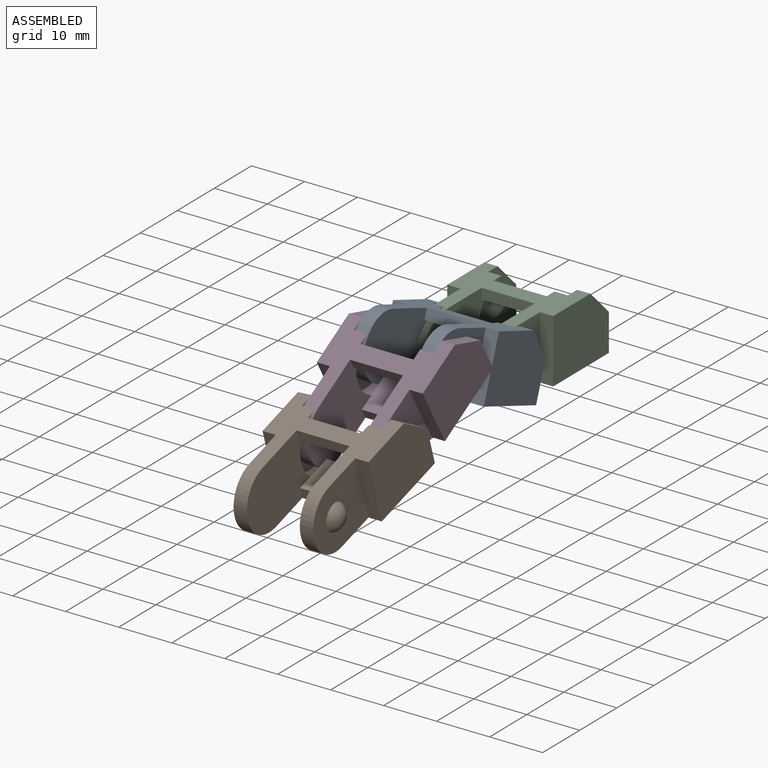
[diagram: assembled view]
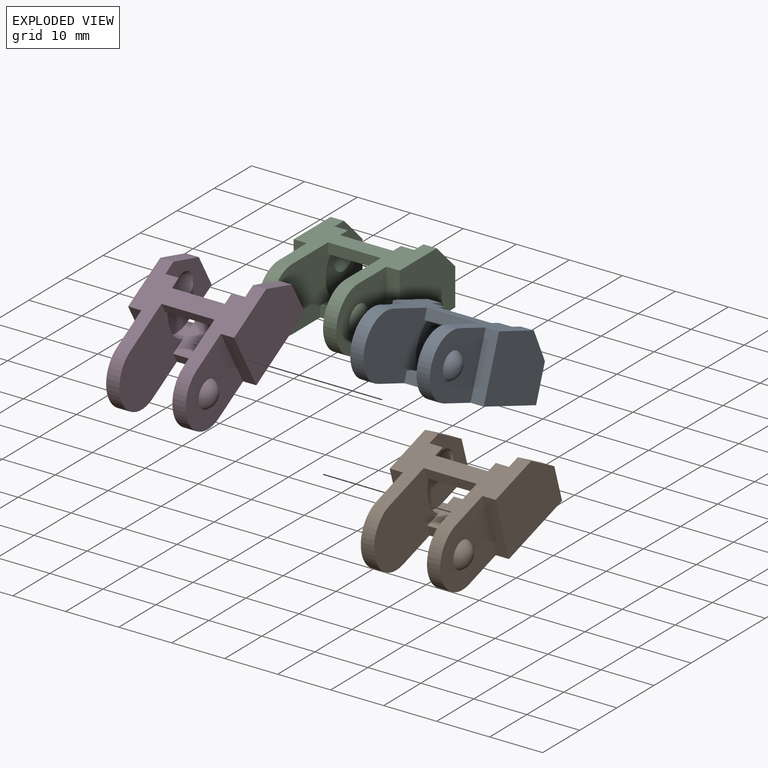
[diagram: exploded view]
GUIDED TOUR — MATED ASSEMBLY (Onshape document 897d0298ff8cda94a772b24f, AutoMate assembly 897d0298ff8cda94a772b24f_019c28cedd6a41c96746a99c_390baf3e306a32f35271c9ea_default)

This assembly has 4 components, labeled P0..P3 below (a component is one placed occurrence of a part; the same part can appear more than once), held together by 3 mates. A mate is a constraint between two components; its type names the relative motion it leaves free:
  REVOLUTE — leaves rotation about the listed axis free (a hinge).
Axis/direction vectors are unit vectors and 'through' points are millimeter coordinates, both in the assembly's world frame.

MATES
  1. REVOLUTE "Revolute 1": P3 <-> P1, axis (1.000, 0.000, 0.000) through (3.24, -34.05, 17.17) mm
  2. REVOLUTE "Revolute 2": P3 <-> P0, axis (-1.000, 0.000, 0.000) through (3.24, -19.09, 25.81) mm
  3. REVOLUTE "Revolute 3": P0 <-> P2, axis (-1.000, 0.000, 0.000) through (3.24, -2.87, 19.90) mm

ASSEMBLY ORDER
  1. P0 — the base component [order heuristic]
  2. P2 [order heuristic]
  3. P3 [order heuristic]
  4. P1 [order heuristic]
Order-tag legend:
  [order heuristic] — this assembly is geometrically interlocked (no collision-free removal order exists), so components are listed in mate-graph order; insertion feasibility is not verified.

Of the 4 components, 4 carry the full construction recipe — the FeatureScript program that regenerates the part's solid from scratch; the rest are supplied as boundary geometry only.
Each toured component is shown spotlighted twice — in the assembled view, then in the exploded view, where a leader line traces a displaced component back to its assembled socket (saturated green if recipe-attached, orange if geometry-only; every other component desaturated gray) — followed by its recipe or geometry summary and the mates that hold it.
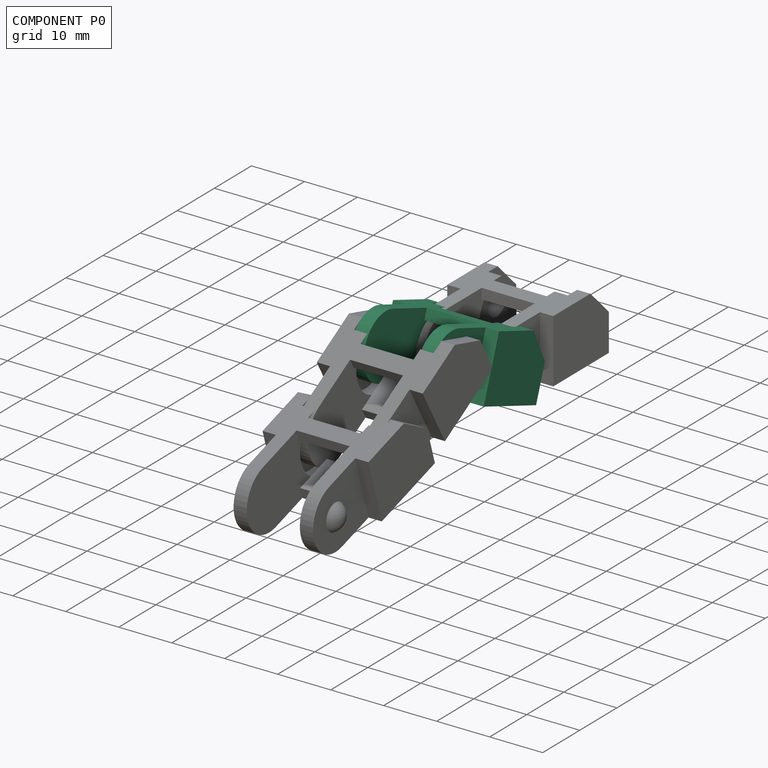
[diagram: component P0 — assembled]
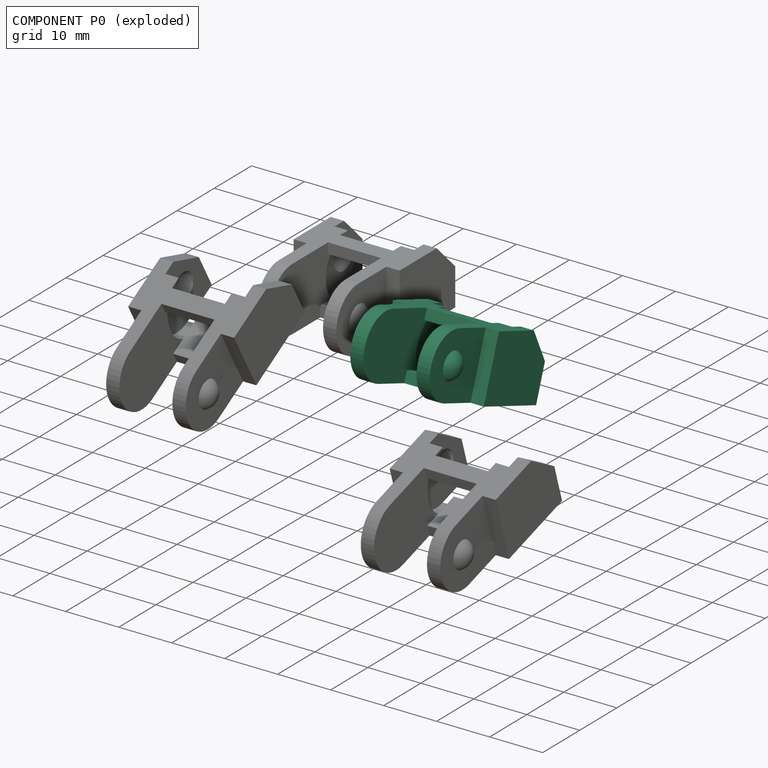
[diagram: component P0 — exploded]
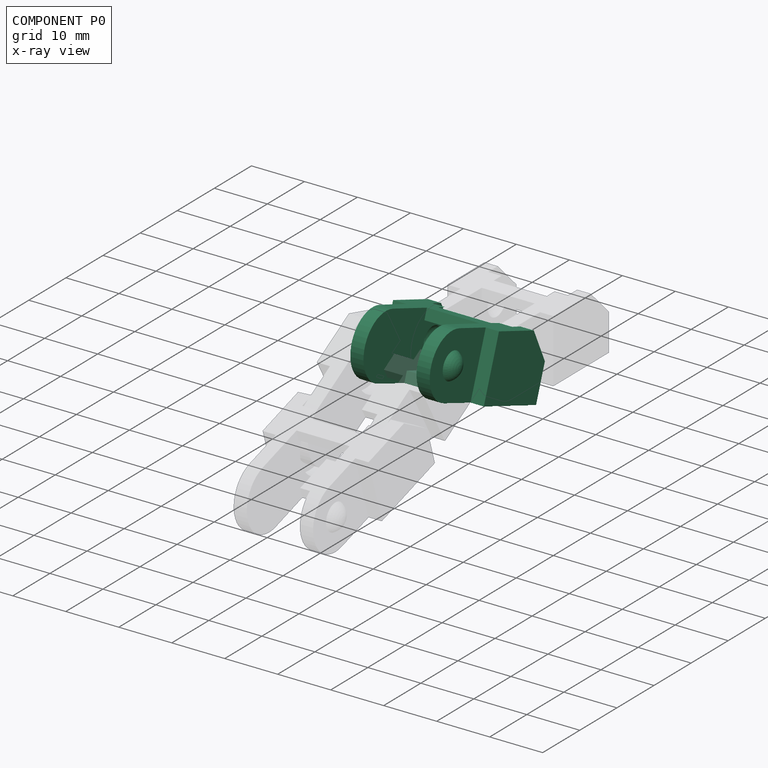
[diagram: component P0 — x-ray view]
COMPONENT P0 — recipe-attached (CADFS 00305585, mesh-verified: the recipe's output STEP matches this component's geometry to below the mesh-comparison resolution (tessellation chordal tolerance ~0.0552 mm)).
Held by: REVOLUTE mate "Revolute 2" to P3; REVOLUTE mate "Revolute 3" to P2.
Construction recipe (FeatureScript — the CAD program that rebuilds this solid; sketch coordinates are in the units given by the * unit suffixes, e.g. mm):

FeatureScript 1511;
import(path : "onshape/std/geometry.fs", version : "1511.0");
import(path : "onshape/std/common.fs", version : "1511.0");
const mm = millimeter;
const VERTEX = EntityType.VERTEX;
const EDGE = EntityType.EDGE;
const FACE = EntityType.FACE;
const BODY = EntityType.BODY;
function v(x, y){return vector(x, y);}
function OD(order){return orderDisambiguation(order);}
function OSD(set){return originalSetDisambiguation(set);}
function TD(topology){return topologyDisambiguation(topology);}
function TDD(query){return trueDependencyDisambiguation(query);}
function sQuery(a, b, c) {return sketchEntityQuery(a, b, c);}

annotation { "Feature Type Name" : "Feature", "Feature Type Description" : "" }
export const myFeature = defineFeature(function(context is Context, id is Id, definition is map)
    precondition{}
    {
        {
            var Q0;
            Q0=qCreatedBy(makeId("Right.planeOp"),FACE);
            var sketch = newSketch(context, id + "F0", { "sketchPlane" : qUnion([Q0])});
            skLineSegment(sketch, "E0", {"start": v(0, -6) * mm, "end": v(15, -6) * mm});
            skLineSegment(sketch, "E1", {"start": v(0, -6) * mm, "end": v(0, 6) * mm});
            skLineSegment(sketch, "E2", {"start": v(0, 6) * mm, "end": v(10, 6) * mm});
            skLineSegment(sketch, "E3", {"start": v(10, 6) * mm, "end": v(15, 1) * mm});
            skLineSegment(sketch, "E4", {"start": v(15, 1) * mm, "end": v(15, -6) * mm});
            skSolve(sketch);
        }
        {
            var Q0;
            Q0=qCreatedBy(makeId("Right.planeOp"),FACE);
            var sketch = newSketch(context, id + "F1", { "sketchPlane" : qUnion([Q0])});
            skLineSegment(sketch, "E5.0", {"start": v(0, -6) * mm, "end": v(0, 6) * mm, "construction": true});
            skLineSegment(sketch, "E5.1", {"start": v(0, 6) * mm, "end": v(10, 6) * mm, "construction": true});
            skLineSegment(sketch, "E5.2", {"start": v(0, -6) * mm, "end": v(15, -6) * mm, "construction": true});
            skLineSegment(sketch, "E6", {"start": v(10, 7.9) * mm, "end": v(7.5, 7.9) * mm, "construction": true});
            skLineSegment(sketch, "E7", {"start": v(7.5, 6) * mm, "end": v(-7.5, 6) * mm});
            skLineSegment(sketch, "E8", {"start": v(7.5, -6) * mm, "end": v(-7.5, -6) * mm});
            skArc(sketch, "E9", {"start": v(-7.5, 6) * mm, "mid": v(-13.5, 0) * mm, "end": v(-7.5, -6) * mm});
            skArc(sketch, "E10", {"start": v(7.5, -6) * mm, "mid": v(1.5, 0) * mm, "end": v(7.5, 6) * mm});
            skLineSegment(sketch, "E11", {"start": v(-7.5, 8.36) * mm, "end": v(-7.5, -8.68) * mm, "construction": true});
            skLineSegment(sketch, "E12", {"start": v(-15.65, 0) * mm, "end": v(18.02, 0) * mm, "construction": true});
            skArc(sketch, "E13", {"start": v(-10, 0) * mm, "mid": v(-7.5, 2.5) * mm, "end": v(-5, 0) * mm});
            skSolve(sketch);
        }
        {
            var Q0;
            Q0=makeQuery(id+"F1.imprint","IMPRINT",FACE,{"disambiguationData":[TD([[makeQuery(id+"F1.imprint","IMPRINT",EDGE,{"derivedFrom":sQuery(id+"F1.wireOp",EDGE,"E7")}),1.0]])]});
            extrude(context, id + "F2", {"entities" : qUnion([Q0]), "oppositeDirection" : true, "depth" : 2.5 * mm});
        }
        {
            var Q0;
            Q0=makeQuery(id+"F2.opExtrude","CAP_FACE",FACE,{"disambiguationData":[OSD([sQuery(id+"F1.wireOp",EDGE,"E7"),sQuery(id+"F1.wireOp",EDGE,"E8"),sQuery(id+"F1.wireOp",EDGE,"E9"),sQuery(id+"F1.wireOp",EDGE,"E10")])],"isStart":false});
            cPlane(context, id + "F3", {"entities" : qUnion([Q0]), "cplaneType" : CPlaneType.OFFSET, "offset" : 1.25 * mm, "oppositeDirection" : true, "width" : 150 * mm, "height" : 150 * mm});
        }
        {
            var Q0;
            Q0=makeQuery(id+"F0.imprint","IMPRINT",FACE,{"disambiguationData":[TD([[makeQuery(id+"F0.imprint","IMPRINT",EDGE,{"derivedFrom":sQuery(id+"F0.wireOp",EDGE,"E0")}),1.0]])]});
            extrude(context, id + "F4", {"entities" : qUnion([Q0]), "operationType" : NewBodyOperationType.ADD, "depth" : 2.5 * mm});
        }
        {
            var Q0;
            Q0=qCreatedBy(makeId("Front.planeOp"),FACE);
            cPlane(context, id + "F5", {"entities" : qUnion([Q0]), "cplaneType" : CPlaneType.OFFSET, "offset" : 9.77 * mm, "oppositeDirection" : true, "width" : 150 * mm, "height" : 150 * mm});
        }
        {
            var Q0;
            Q0=qCreatedBy(id+"F5.planeOp",FACE);
            var sketch = newSketch(context, id + "F6", { "sketchPlane" : qUnion([Q0])});
            skLineSegment(sketch, "E14", {"start": v(-28.05, 0) * mm, "end": v(6.44, 0) * mm, "construction": true});
            skLineSegment(sketch, "E15", {"start": v(1.5, 7.89) * mm, "end": v(1.5, -13.1) * mm, "construction": true});
            skLineSegment(sketch, "E16", {"start": v(0, 7.89) * mm, "end": v(0, -9.72) * mm, "construction": true});
            skLineSegment(sketch, "E17", {"start": v(-2.53, 0) * mm, "end": v(-2.53, 2.5) * mm});
            skArc(sketch, "E18", {"start": v(0, 2.5) * mm, "mid": v(1.14, 1.47) * mm, "end": v(1.56, 0) * mm});
            skLineSegment(sketch, "E19", {"start": v(0, 2.5) * mm, "end": v(-2.53, 2.5) * mm});
            skLineSegment(sketch, "E20", {"start": v(-2.53, 0) * mm, "end": v(1.56, 0) * mm});
            skSolve(sketch);
        }
        {
            var Q0;
            Q0 = qSketchRegion(id + "F6", true);
            var Q1;
            Q1=sQuery(id+"F6.wireOp",EDGE,"E14");
            revolve(context, id + "F7", {"operationType" : NewBodyOperationType.REMOVE, "entities" : qUnion([Q0]), "axis" : qUnion([Q1]), "revolveType" : RevolveType.FULL, "oppositeDirection" : true});
        }
        {
            var Q0;
            Q0=makeQuery(id+"F4.boolean.opBoolean","MERGE",FACE,{"derivedFrom":[makeQuery(id+"F2.opExtrude","SWEPT_FACE",FACE,{"disambiguationData":[OSD([sQuery(id+"F1.wireOp",EDGE,"E7")])]}),makeQuery(id+"F4.opExtrude","SWEPT_FACE",FACE,{"disambiguationData":[OSD([sQuery(id+"F0.wireOp",EDGE,"E2")])]})]});
            var sketch = newSketch(context, id + "F8", { "sketchPlane" : qUnion([Q0])});
            skLineSegment(sketch, "E21.0", {"start": v(-2.5, 7.5) * mm, "end": v(0, 7.5) * mm, "construction": true});
            skLineSegment(sketch, "E21.1", {"start": v(2.5, 0) * mm, "end": v(0, 0) * mm, "construction": true});
            skLineSegment(sketch, "E22", {"start": v(-5, 7.5) * mm, "end": v(-5, 0) * mm, "construction": true});
            skPoint(sketch, "E22.endSnap0", {"position": v(-2.5, 0) * mm});
            skLineSegment(sketch, "E23", {"start": v(-10.67, 3.75) * mm, "end": v(12.8, 3.75) * mm, "construction": true});
            skPoint(sketch, "E23.startSnap0", {"position": v(-5, 3.75) * mm});
            skLineSegment(sketch, "E24.bottom", {"start": v(-7.5, 5.38) * mm, "end": v(-2.49, 5.38) * mm});
            skLineSegment(sketch, "E24.top", {"start": v(-7.5, 2.12) * mm, "end": v(-2.49, 2.12) * mm});
            skLineSegment(sketch, "E24.left", {"start": v(-7.5, 5.38) * mm, "end": v(-7.5, 2.12) * mm});
            skLineSegment(sketch, "E24.right", {"start": v(-2.49, 5.38) * mm, "end": v(-2.49, 2.12) * mm});
            skSolve(sketch);
        }
        {
            var Q0;
            {var subQ0=sQuery(id+"F8.wireOp",EDGE,"E24.left");Q0=makeQuery(id+"F8.imprint","IMPRINT",FACE,{"disambiguationData":[TD([[makeQuery(id+"F8.imprint","IMPRINT",EDGE,{"derivedFrom":subQ0}),1.0]])]});}
            extrude(context, id + "F9", {"entities" : qUnion([Q0]), "operationType" : NewBodyOperationType.ADD, "oppositeDirection" : true, "depth" : 2 * mm});
        }
        {
            var Q0;
            Q0=makeQuery(id+"F4.boolean.opBoolean","MERGE",FACE,{"derivedFrom":[makeQuery(id+"F2.opExtrude","SWEPT_FACE",FACE,{"disambiguationData":[OSD([sQuery(id+"F1.wireOp",EDGE,"E8")])]}),makeQuery(id+"F4.opExtrude","SWEPT_FACE",FACE,{"disambiguationData":[OSD([sQuery(id+"F0.wireOp",EDGE,"E0")])]})]});
            var sketch = newSketch(context, id + "F10", { "sketchPlane" : qUnion([Q0])});
            skPoint(sketch, "E25.0", {"position": v(-7.5, -3.75) * mm});
            skLineSegment(sketch, "E26", {"start": v(-11.22, -3.75) * mm, "end": v(4.98, -3.75) * mm, "construction": true});
            skLineSegment(sketch, "E27.0", {"start": v(-2.5, -7.5) * mm, "end": v(0, -7.5) * mm, "construction": true});
            skLineSegment(sketch, "E27.1", {"start": v(2.5, 0) * mm, "end": v(0, 0) * mm, "construction": true});
            skPoint(sketch, "E27.2", {"position": v(-5, -5.38) * mm});
            skLineSegment(sketch, "E28.bottom", {"start": v(-7.5, -7.5) * mm, "end": v(-2.5, -7.5) * mm});
            skLineSegment(sketch, "E28.top", {"start": v(-7.5, 0) * mm, "end": v(-2.5, 0) * mm});
            skLineSegment(sketch, "E28.left", {"start": v(-7.5, -7.5) * mm, "end": v(-7.5, 0) * mm});
            skLineSegment(sketch, "E28.right", {"start": v(-2.5, -7.5) * mm, "end": v(-2.5, 0) * mm});
            skSolve(sketch);
        }
        {
            var Q0;
            Q0=makeQuery(id+"F10.imprint","IMPRINT",FACE,{"disambiguationData":[TD([[makeQuery(id+"F10.imprint","IMPRINT",EDGE,{"derivedFrom":sQuery(id+"F10.wireOp",EDGE,"E28.bottom")}),1.0]])]});
            extrude(context, id + "F11", {"entities" : qUnion([Q0]), "operationType" : NewBodyOperationType.ADD, "oppositeDirection" : true, "depth" : 2 * mm});
        }
        {
            var Q0;
            Q0=makeQuery(id+"F11.opExtrude","SWEPT_FACE",FACE,{"disambiguationData":[OSD([sQuery(id+"F10.wireOp",EDGE,"E28.left")])]});
            cPlane(context, id + "F12", {"entities" : qUnion([Q0]), "cplaneType" : CPlaneType.OFFSET, "offset" : 0 * mm, "width" : 150 * mm, "height" : 150 * mm});
        }
        {
            var Q0;
            Q0=makeQuery(id+"F4.opExtrude","SWEPT_FACE",FACE,{"disambiguationData":[OSD([sQuery(id+"F0.wireOp",EDGE,"E1")])]});
            cPlane(context, id + "F13", {"entities" : qUnion([Q0]), "cplaneType" : CPlaneType.OFFSET, "offset" : 7.5 * mm, "width" : 150 * mm, "height" : 150 * mm});
        }
        {
            var Q0;
            Q0=qCreatedBy(id+"F13.planeOp",FACE);
            var sketch = newSketch(context, id + "F14", { "sketchPlane" : qUnion([Q0])});
            skLineSegment(sketch, "E29", {"start": v(-5.3, 0) * mm, "end": v(4.83, 0) * mm, "construction": true});
            skArc(sketch, "E30", {"start": v(1.52, 0) * mm, "mid": v(1.11, 1.46) * mm, "end": v(0, 2.5) * mm});
            skLineSegment(sketch, "E31", {"start": v(0, 2.5) * mm, "end": v(0, 0) * mm});
            skLineSegment(sketch, "E32", {"start": v(0, 0) * mm, "end": v(1.52, 0) * mm});
            skSolve(sketch);
        }
        {
            var Q0;
            Q0=makeQuery(id+"F14.imprint","IMPRINT",FACE,{"disambiguationData":[TD([[makeQuery(id+"F14.imprint","IMPRINT",EDGE,{"derivedFrom":sQuery(id+"F14.wireOp",EDGE,"E30")}),1.0]])]});
            var Q1;
            Q1=sQuery(id+"F14.wireOp",EDGE,"E29");
            revolve(context, id + "F15", {"operationType" : NewBodyOperationType.ADD, "entities" : qUnion([Q0]), "axis" : qUnion([Q1]), "revolveType" : RevolveType.FULL});
        }
        {
            var Q0;
            Q0=makeQuery(id+"F2.opExtrude","SWEPT_BODY",BODY,{"disambiguationData":[OSD([sQuery(id+"F1.wireOp",EDGE,"E7"),sQuery(id+"F1.wireOp",EDGE,"E8"),sQuery(id+"F1.wireOp",EDGE,"E9"),sQuery(id+"F1.wireOp",EDGE,"E10")])]});
            var Q1;
            Q1=qCreatedBy(id+"F12.planeOp",FACE);
            mirror(context, id + "F16", {"operationType" : NewBodyOperationType.ADD, "entities" : qUnion([Q0]), "mirrorPlane" : qUnion([Q1])});
        }
    });
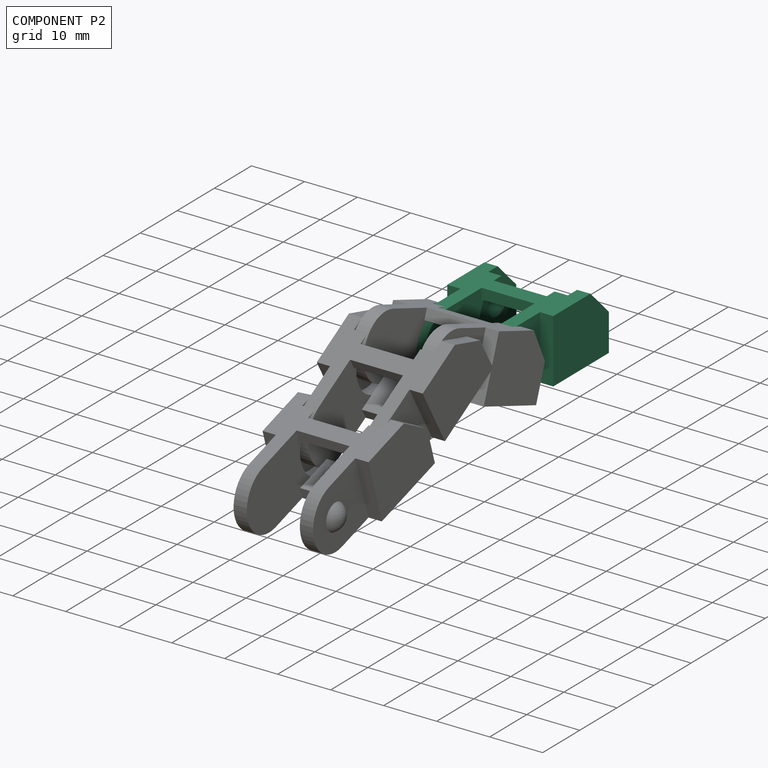
[diagram: component P2 — assembled]
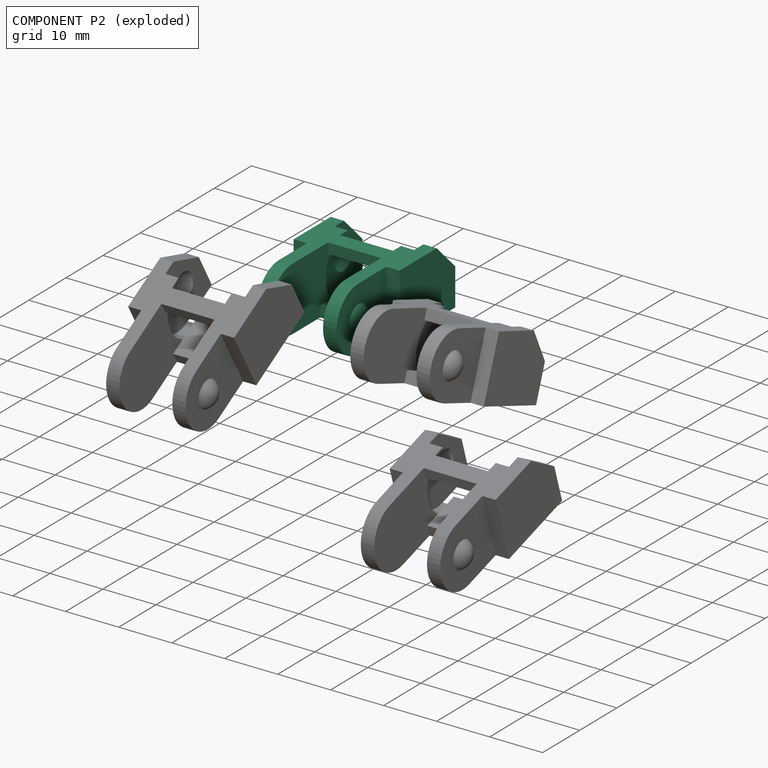
[diagram: component P2 — exploded]
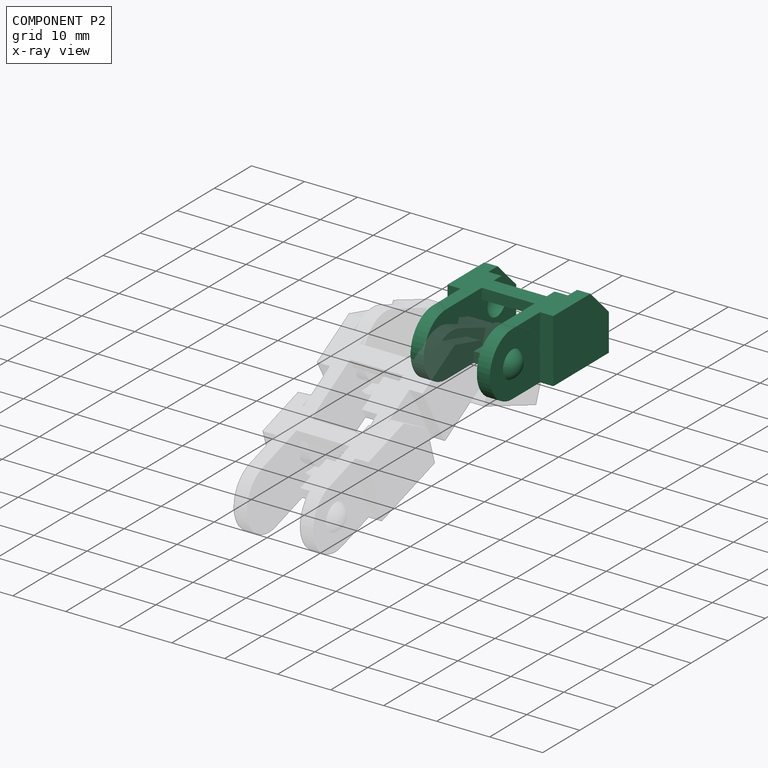
[diagram: component P2 — x-ray view]
COMPONENT P2 — same part as P0 (CADFS 00305585); its construction recipe is shown at P0.
Held by: REVOLUTE mate "Revolute 3" to P0.
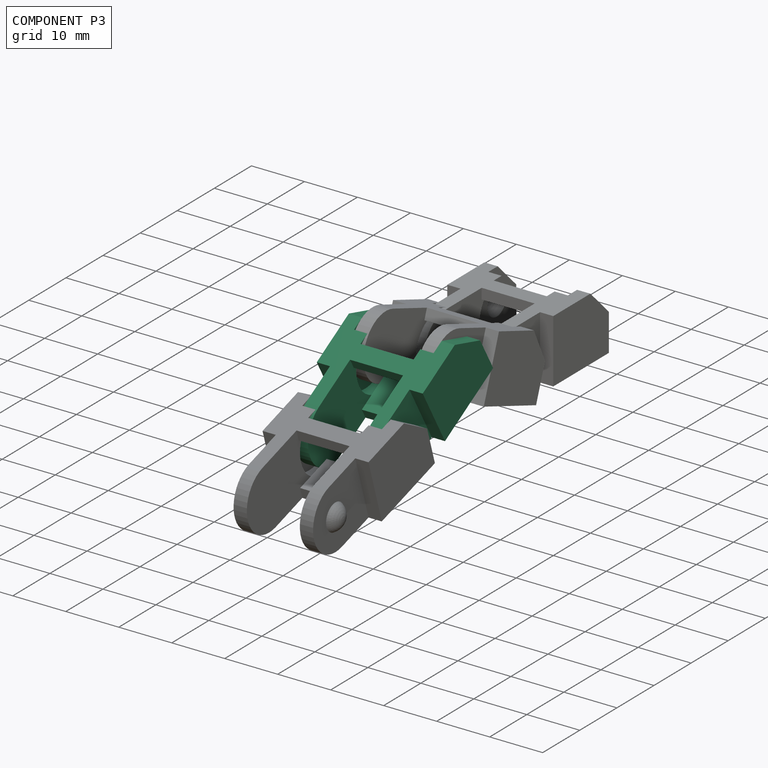
[diagram: component P3 — assembled]
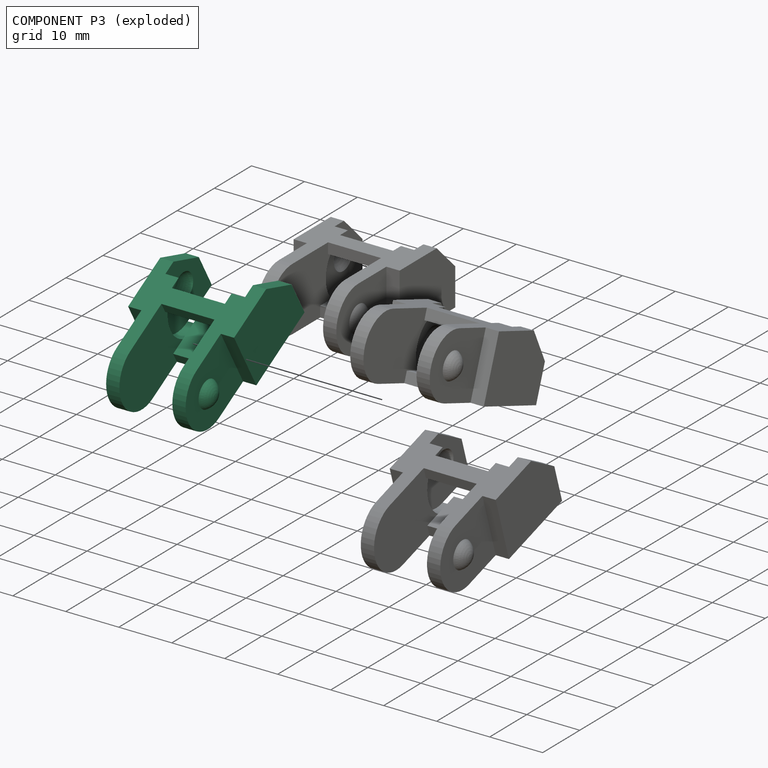
[diagram: component P3 — exploded]
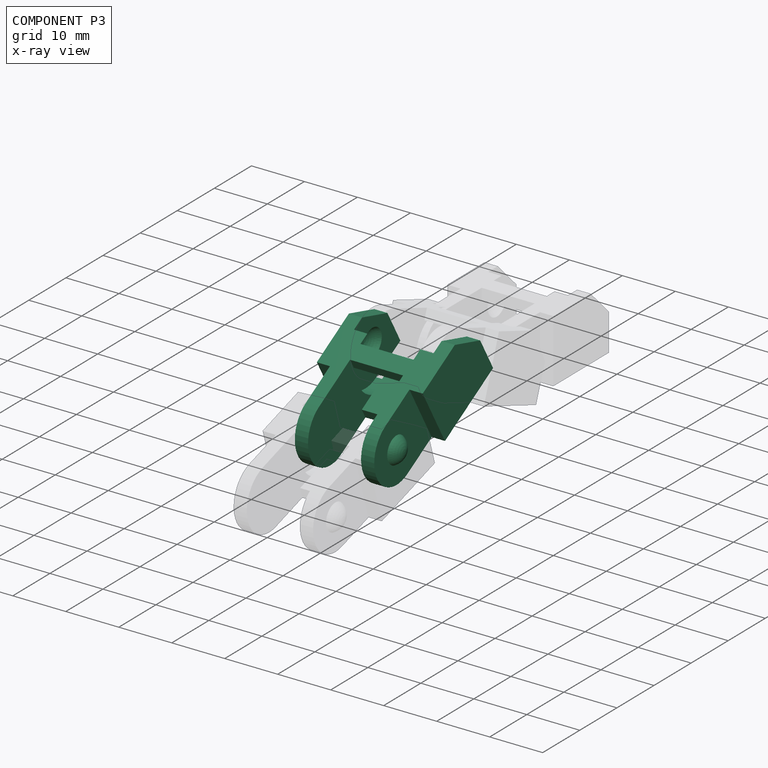
[diagram: component P3 — x-ray view]
COMPONENT P3 — same part as P0 (CADFS 00305585); its construction recipe is shown at P0.
Held by: REVOLUTE mate "Revolute 1" to P1; REVOLUTE mate "Revolute 2" to P0.
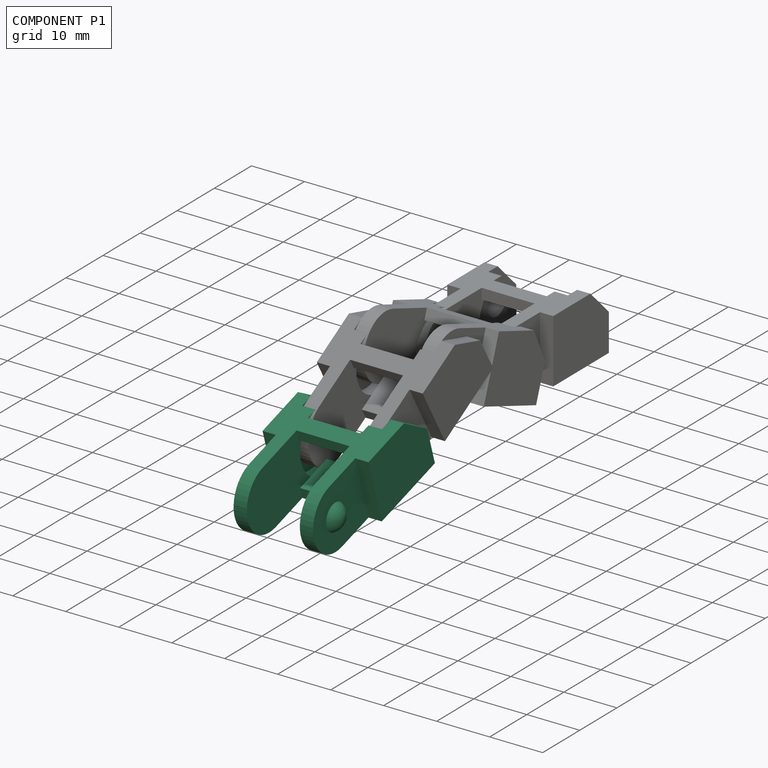
[diagram: component P1 — assembled]
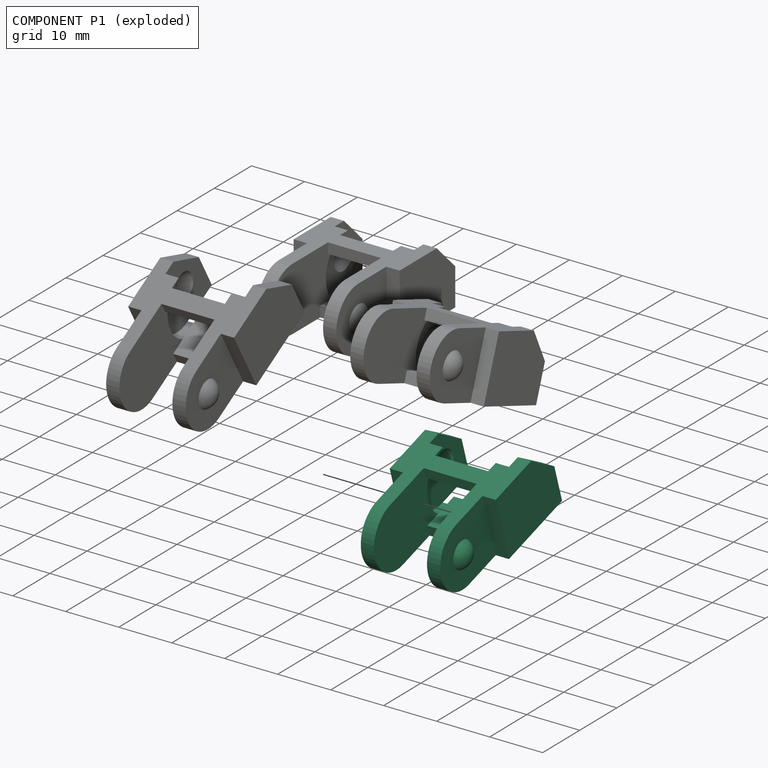
[diagram: component P1 — exploded]
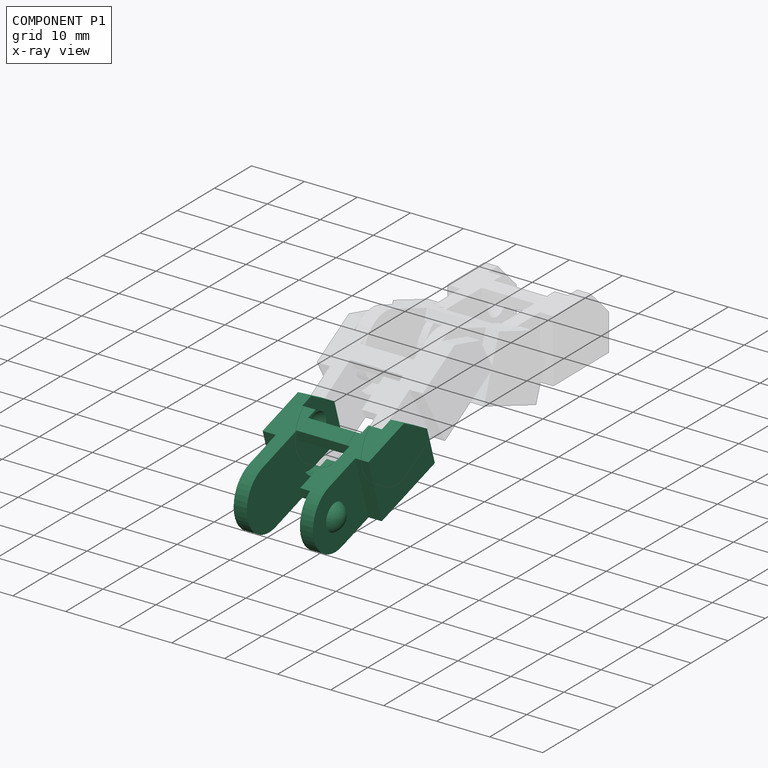
[diagram: component P1 — x-ray view]
COMPONENT P1 — same part as P0 (CADFS 00305585); its construction recipe is shown at P0.
Held by: REVOLUTE mate "Revolute 1" to P3.
PROVENANCE & LICENSES
Assembly (occurrences, transforms, mates, per-part STEP geometry): AutoMate dataset, Zenodo record 7776208, CC0.
Construction recipes: CADFS (HuggingFace VladPyatov/CADFS, CC-BY-4.0, layered over the ABC dataset), FeatureScript reconstruction programs keyed by ABC model id.
Join: ABC meta listings map ABC model id -> Onshape documentId; within a shared document, parts are matched by geometric signature (bounding-box dims + volume at 0.1% relative tolerance, exact B-rep face/solid counts).
Verification: 4 of this assembly's 4 components carry a recipe attachment, and every attachment is mesh-verified: the CADFS STEP and the AutoMate member STEP were compared as meshes in their shared local frame (symmetric sampled-point-to-mesh distance); worst across the 4 attachments: below the mesh-comparison resolution (tessellation chordal tolerance ~0.0552 mm) on a 37 mm part.
Renders: orthographic iso camera (az 35 / el 25); the floor grid conveys scale (grid pitch printed in each image; no ruler). In the exploded view each component is displaced by its stored offset vector: the offsets alone carry the explosion direction (mate normal/axis signs are not orientation cues and do not encode it), and separation distances are assigned per mate-chain, not proportionally to assembly-order depth.
